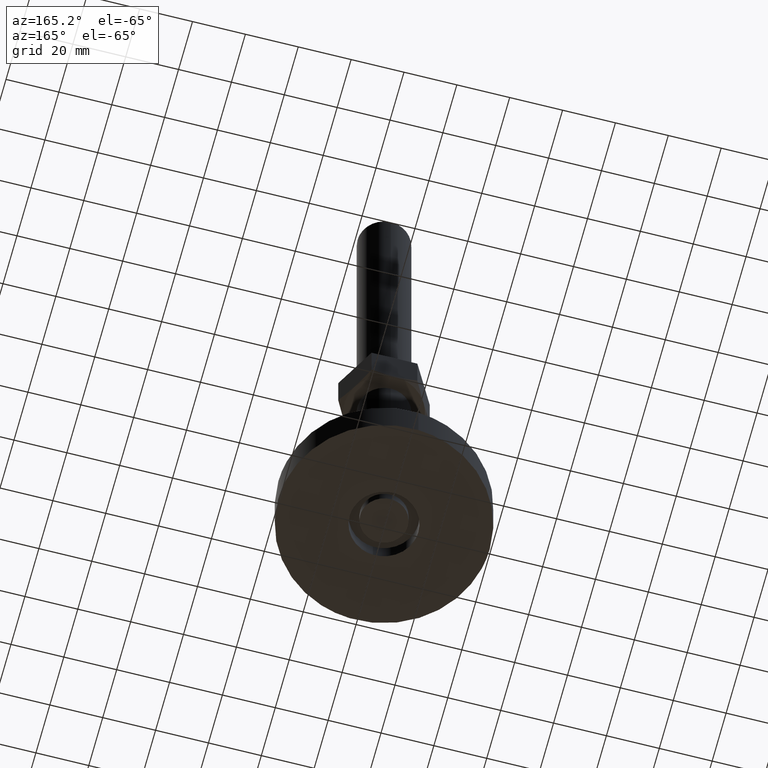
[diagram: clean part render]
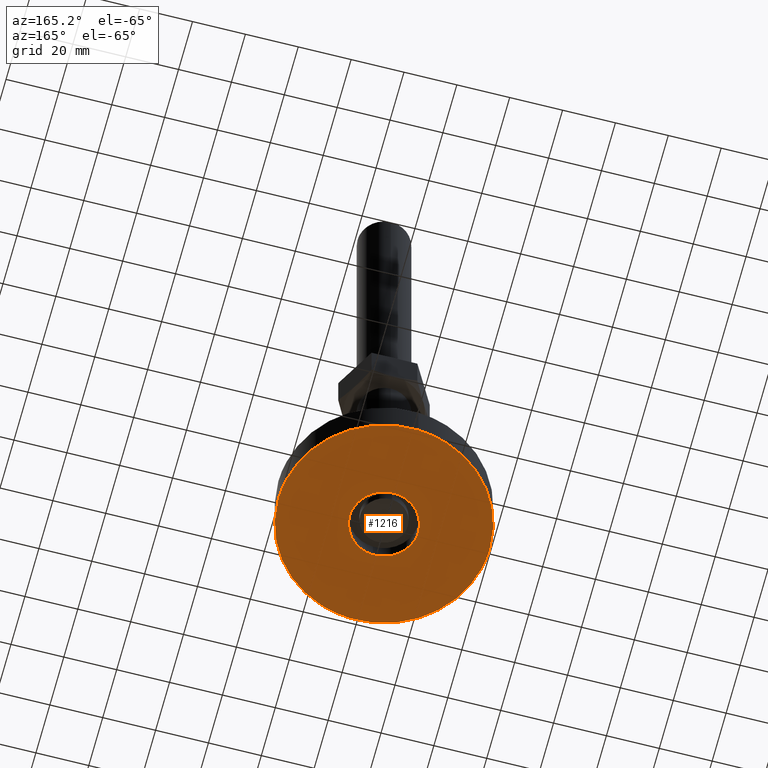
[diagram: same view with one face highlighted and labeled with its STEP entity id]
A machine part, auxiliary view. The second image highlights one B-rep face of the part: STEP entity #1216.
In plain terms, the highlighted face is a freeform B-spline surface patch.
Its self-contained STEP definition (entity closure, byte-faithful):
#1035=CARTESIAN_POINT('',(0.793626155349970,-12.975752676647490,6.322720E-014));
#1036=VERTEX_POINT('',#1035);
#1037=CARTESIAN_POINT('',(-13.000000000000330,-1.705303E-013,0.0));
#1038=VERTEX_POINT('',#1037);
#1039=CARTESIAN_POINT('',(0.793626155349970,-12.975752676647492,6.322720E-014));
#1040=CARTESIAN_POINT('',(0.397183486768452,-13.000000000000172,0.0));
#1041=CARTESIAN_POINT('',(-3.268497E-013,-13.000000000000171,0.0));
#1042=CARTESIAN_POINT('',(-13.000000000000325,-13.000000000000167,0.0));
#1043=CARTESIAN_POINT('',(-13.000000000000330,-1.705303E-013,0.0));
#1051=(BOUNDED_CURVE()B_SPLINE_CURVE(2,(#1039,#1040,#1041,#1042,#1043),.UNSPECIFIED.,.F.,.U.)B_SPLINE_CURVE_WITH_KNOTS((3,2,3),(0.239333026849888,0.250000000000000,0.500000000000000),.UNSPECIFIED.)CURVE()GEOMETRIC_REPRESENTATION_ITEM()RATIONAL_B_SPLINE_CURVE((0.976072180140311,0.987502863596268,1.0,0.707106781186547,1.0))REPRESENTATION_ITEM(''));
#1052=EDGE_CURVE('',#1036,#1038,#1051,.T.);
#1054=CARTESIAN_POINT('',(-0.793626155350623,12.975752676647151,6.404599E-014));
#1055=VERTEX_POINT('',#1054);
#1056=CARTESIAN_POINT('',(-13.000000000000330,-1.705303E-013,0.0));
#1057=CARTESIAN_POINT('',(-13.000000000000325,12.229183457389434,0.0));
#1058=CARTESIAN_POINT('',(-0.793626155350675,12.975752676648062,0.0));
#1066=(BOUNDED_CURVE()B_SPLINE_CURVE(2,(#1056,#1057,#1058),.UNSPECIFIED.,.F.,.U.)B_SPLINE_CURVE_WITH_KNOTS((3,3),(0.500000000000000,0.739333026849888),.UNSPECIFIED.)CURVE()GEOMETRIC_REPRESENTATION_ITEM()RATIONAL_B_SPLINE_CURVE((1.0,0.719603917590280,0.976072180140311))REPRESENTATION_ITEM(''));
#1067=EDGE_CURVE('',#1038,#1055,#1066,.T.);
#1102=CARTESIAN_POINT('',(12.999999999999670,-1.705303E-013,0.0));
#1103=VERTEX_POINT('',#1102);
#1104=CARTESIAN_POINT('',(12.999999999999670,-1.705303E-013,0.0));
#1105=CARTESIAN_POINT('',(12.999999999999673,-12.229183457389770,0.0));
#1106=CARTESIAN_POINT('',(0.793626155350024,-12.975752676648403,0.0));
#1114=(BOUNDED_CURVE()B_SPLINE_CURVE(2,(#1104,#1105,#1106),.UNSPECIFIED.,.F.,.U.)B_SPLINE_CURVE_WITH_KNOTS((3,3),(0.0,0.239333026849888),.UNSPECIFIED.)CURVE()GEOMETRIC_REPRESENTATION_ITEM()RATIONAL_B_SPLINE_CURVE((1.0,0.719603917590280,0.976072180140311))REPRESENTATION_ITEM(''));
#1115=EDGE_CURVE('',#1103,#1036,#1114,.T.);
#1121=CARTESIAN_POINT('',(-0.793626155350623,12.975752676647151,6.404599E-014));
#1122=CARTESIAN_POINT('',(-0.397183486769104,12.999999999999826,0.0));
#1123=CARTESIAN_POINT('',(-3.268497E-013,12.999999999999829,0.0));
#1124=CARTESIAN_POINT('',(12.999999999999675,12.999999999999829,0.0));
#1125=CARTESIAN_POINT('',(12.999999999999670,-1.705303E-013,0.0));
#1133=(BOUNDED_CURVE()B_SPLINE_CURVE(2,(#1121,#1122,#1123,#1124,#1125),.UNSPECIFIED.,.F.,.U.)B_SPLINE_CURVE_WITH_KNOTS((3,2,3),(0.739333026849888,0.750000000000000,1.0),.UNSPECIFIED.)CURVE()GEOMETRIC_REPRESENTATION_ITEM()RATIONAL_B_SPLINE_CURVE((0.976072180140311,0.987502863596268,1.0,0.707106781186547,1.0))REPRESENTATION_ITEM(''));
#1134=EDGE_CURVE('',#1055,#1103,#1133,.T.);
#1139=CARTESIAN_POINT('',(-43.995999844944457,-43.995015492367628,-4.263256E-014));
#1140=CARTESIAN_POINT('',(43.996001990711697,-43.995015492367628,-4.263256E-014));
#1141=CARTESIAN_POINT('',(-43.995999844944457,43.995014061856153,-4.263256E-014));
#1142=CARTESIAN_POINT('',(43.996001990711697,43.995014061856153,-4.263256E-014));
#1143=B_SPLINE_SURFACE_WITH_KNOTS('',1,1,((#1139,#1141),(#1140,#1142)),.UNSPECIFIED.,.F.,.F.,.U.,(2,2),(2,2),(0.0,87.992001835656168),(0.0,87.990029554223781),.UNSPECIFIED.);
#1144=CARTESIAN_POINT('',(-39.999999999999993,0.0,-8.526513E-014));
#1145=VERTEX_POINT('',#1144);
#1146=CARTESIAN_POINT('',(-2.441928921607621,39.925392711176372,-8.679168E-014));
#1147=VERTEX_POINT('',#1146);
#1148=CARTESIAN_POINT('',(-39.999999999999993,0.0,-8.526513E-014));
#1149=CARTESIAN_POINT('',(-39.999999999999929,37.628254629916938,-8.602841E-014));
#1150=CARTESIAN_POINT('',(-2.441928921607621,39.925392711176372,-8.679168E-014));
#1158=(BOUNDED_CURVE()B_SPLINE_CURVE(2,(#1148,#1149,#1150),.UNSPECIFIED.,.F.,.U.)B_SPLINE_CURVE_WITH_KNOTS((3,3),(0.0,0.239333016954158),.UNSPECIFIED.)CURVE()GEOMETRIC_REPRESENTATION_ITEM()RATIONAL_B_SPLINE_CURVE((1.0,0.719603929183848,0.976072158931868))REPRESENTATION_ITEM(''));
#1159=EDGE_CURVE('',#1145,#1147,#1158,.T.);
#1160=ORIENTED_EDGE('',*,*,#1159,.T.);
#1161=CARTESIAN_POINT('',(40.000000000000007,0.0,0.0));
#1162=VERTEX_POINT('',#1161);
#1163=CARTESIAN_POINT('',(-2.441928921607621,39.925392711176372,-8.679168E-014));
#1164=CARTESIAN_POINT('',(-1.222104184301847,39.999999999998025,-8.554444E-014));
#1165=CARTESIAN_POINT('',(1.340076E-013,39.999999999998053,-8.421859E-014));
#1166=CARTESIAN_POINT('',(40.000000000000071,39.999999999999048,-4.082275E-014));
#1167=CARTESIAN_POINT('',(40.000000000000007,0.0,0.0));
#1175=(BOUNDED_CURVE()B_SPLINE_CURVE(2,(#1163,#1164,#1165,#1166,#1167),.UNSPECIFIED.,.F.,.U.)B_SPLINE_CURVE_WITH_KNOTS((3,2,3),(0.239333016954158,0.250000000000000,0.500000000000000),.UNSPECIFIED.)CURVE()GEOMETRIC_REPRESENTATION_ITEM()RATIONAL_B_SPLINE_CURVE((0.976072158931868,0.987502852002700,1.0,0.707106781186548,1.0))REPRESENTATION_ITEM(''));
#1176=EDGE_CURVE('',#1147,#1162,#1175,.T.);
#1177=ORIENTED_EDGE('',*,*,#1176,.T.);
#1178=CARTESIAN_POINT('',(2.441928921607653,-39.925392711176357,-8.504308E-014));
#1179=VERTEX_POINT('',#1178);
#1180=CARTESIAN_POINT('',(40.000000000000007,0.0,0.0));
#1181=CARTESIAN_POINT('',(39.999999999999950,-37.628254629916938,-4.252154E-014));
#1182=CARTESIAN_POINT('',(2.441928921607653,-39.925392711176364,-8.504308E-014));
#1190=(BOUNDED_CURVE()B_SPLINE_CURVE(2,(#1180,#1181,#1182),.UNSPECIFIED.,.F.,.U.)B_SPLINE_CURVE_WITH_KNOTS((3,3),(0.500000000000000,0.739333016954158),.UNSPECIFIED.)CURVE()GEOMETRIC_REPRESENTATION_ITEM()RATIONAL_B_SPLINE_CURVE((1.0,0.719603929183848,0.976072158931868))REPRESENTATION_ITEM(''));
#1191=EDGE_CURVE('',#1162,#1179,#1190,.T.);
#1192=ORIENTED_EDGE('',*,*,#1191,.T.);
#1193=CARTESIAN_POINT('',(2.441928921607653,-39.925392711176364,-8.504308E-014));
#1194=CARTESIAN_POINT('',(1.222104184301880,-39.999999999998018,-8.504627E-014));
#1195=CARTESIAN_POINT('',(-1.017075E-013,-39.999999999998053,-8.504967E-014));
#1196=CARTESIAN_POINT('',(-40.000000000000036,-39.999999999999048,-8.516069E-014));
#1197=CARTESIAN_POINT('',(-39.999999999999993,0.0,-8.526513E-014));
#1205=(BOUNDED_CURVE()B_SPLINE_CURVE(2,(#1193,#1194,#1195,#1196,#1197),.UNSPECIFIED.,.F.,.U.)B_SPLINE_CURVE_WITH_KNOTS((3,2,3),(0.739333016954158,0.750000000000000,1.0),.UNSPECIFIED.)CURVE()GEOMETRIC_REPRESENTATION_ITEM()RATIONAL_B_SPLINE_CURVE((0.976072158931868,0.987502852002700,1.0,0.707106781186548,1.0))REPRESENTATION_ITEM(''));
#1206=EDGE_CURVE('',#1179,#1145,#1205,.T.);
#1207=ORIENTED_EDGE('',*,*,#1206,.T.);
#1208=EDGE_LOOP('',(#1160,#1177,#1192,#1207));
#1209=FACE_OUTER_BOUND('',#1208,.T.);
#1210=ORIENTED_EDGE('',*,*,#1067,.F.);
#1211=ORIENTED_EDGE('',*,*,#1052,.F.);
#1212=ORIENTED_EDGE('',*,*,#1115,.F.);
#1213=ORIENTED_EDGE('',*,*,#1134,.F.);
#1214=EDGE_LOOP('',(#1210,#1211,#1212,#1213));
#1215=FACE_BOUND('',#1214,.T.);
#1216=ADVANCED_FACE('',(#1209,#1215),#1143,.F.);